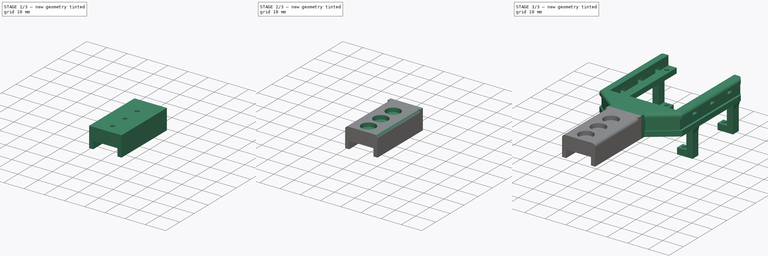
[diagram: build sequence overview — one tinted view per stage of 3, left to right]
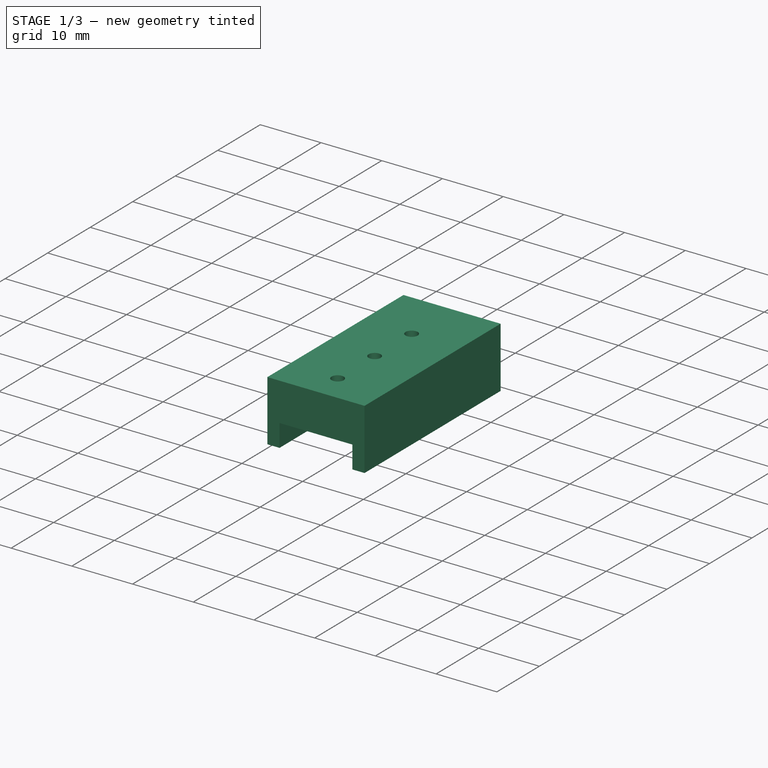
[diagram: stage 1 of 3 — iso view after this stage's code; geometry added in this stage tinted green]
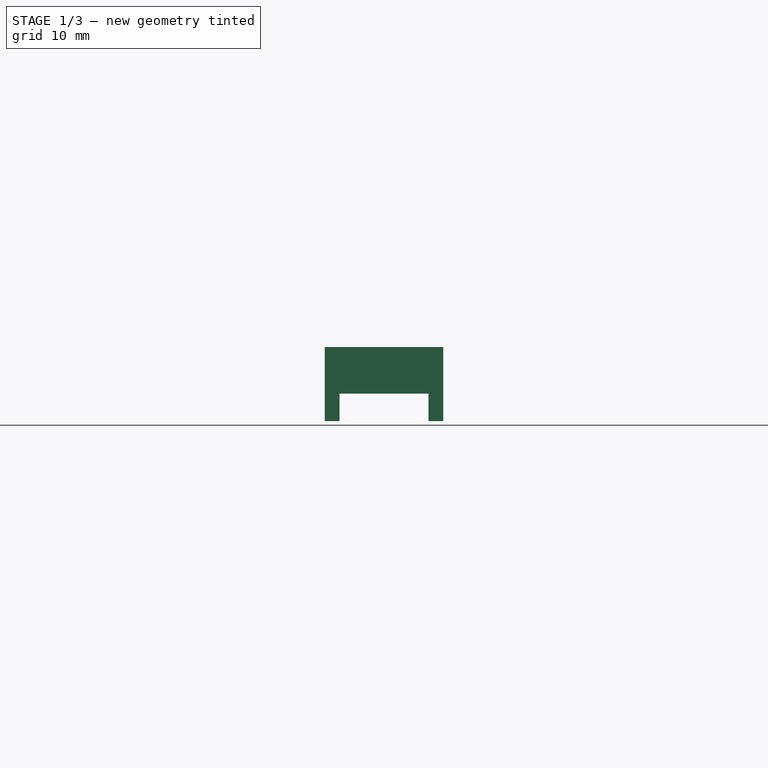
[diagram: stage 1 of 3 — front view after this stage's code; geometry added in this stage tinted green]
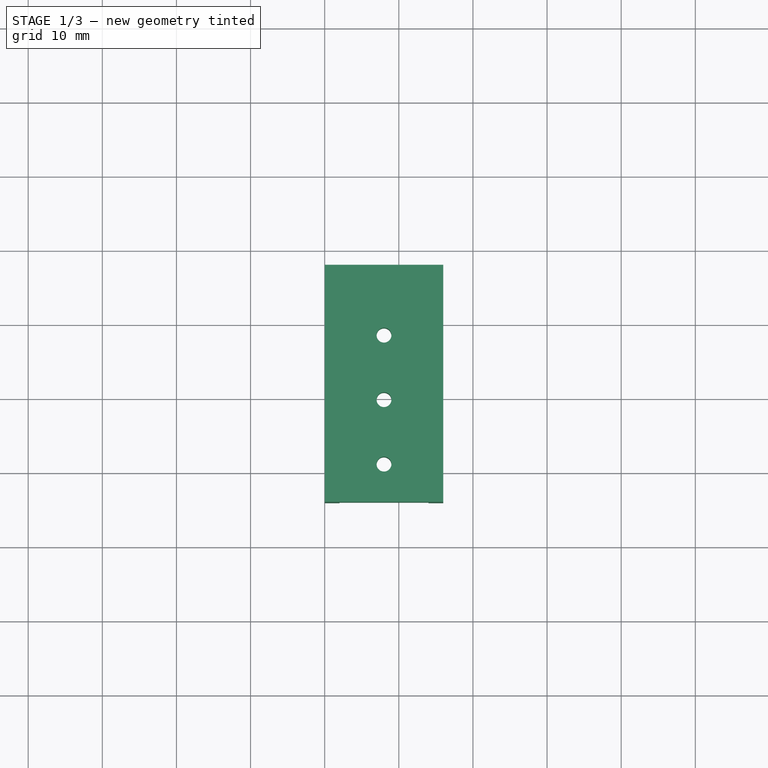
[diagram: stage 1 of 3 — top view after this stage's code; geometry added in this stage tinted green]
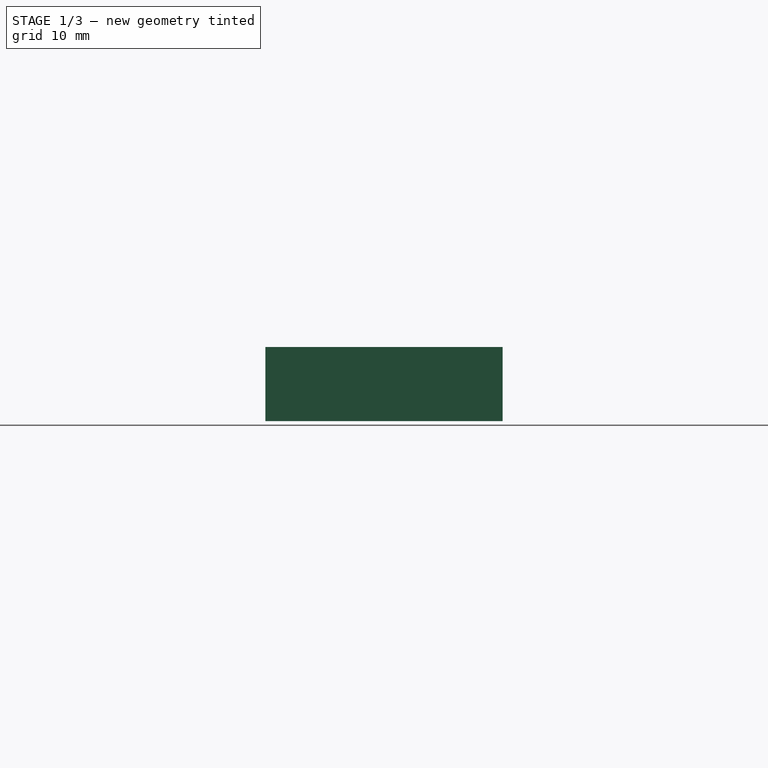
[diagram: stage 1 of 3 — right view after this stage's code; geometry added in this stage tinted green]
FCSTD DOCUMENT  (FreeCAD 0.16R6707 (Git))
Label: rq_optskin01a
License: All rights reserved
LicenseURL: http://en.wikipedia.org/wiki/All_rights_reserved
objects: Sketcher::SketchObject×6, PartDesign::Pocket×4, Part::Extrusion×2, Part::Feature×1, Part::Cut×1, Part::MultiFuse×1
note: 19 computed .brp shape members not serialized (recipe doc carries the construction recipe); baked Part::Feature solids carry a one-line shape summary decoded from their .brp

FEATURE [Part::Feature] bxgr_optskin02a_v3_1
  shape: bbox 248.5 x 97.65 x 277.8 mm, 168 faces (baked)
FEATURE [Sketcher::SketchObject] Sketch018
  Placement = pos=(0,0,10) rot=(0,0,1;0rad)
  sketch-geometry (4):
    g0: LineSegment StartX=0 StartY=-2 StartZ=0 EndX=16 EndY=-2 EndZ=0
    g1: LineSegment StartX=16 StartY=-2 StartZ=0 EndX=16 EndY=-34 EndZ=0
    g2: LineSegment StartX=16 StartY=-34 StartZ=0 EndX=0 EndY=-34 EndZ=0
    g3: LineSegment StartX=0 StartY=-34 StartZ=0 EndX=0 EndY=-2 EndZ=0
  constraints (12):
    c: Coincident(g0,g1)
    c: Coincident(g1,g2)
    c: Coincident(g2,g3)
    c: Coincident(g3,g0)
    c: Horizontal(g0)
    c: Horizontal(g2)
    c: Vertical(g1)
    c: Vertical(g3)
    c: DistanceY(g2,g0) = 32
    c: DistanceY(g0,g-1) = 2
    c: DistanceX(g0,g0) = 16
    c: PointOnObject(g0,g-2)
FEATURE [Part::Extrusion] Extrude001
  Base = -> Sketch018
  Dir = (0,0,-10)
  Solid = true
FEATURE [Sketcher::SketchObject] Sketch
  ExternalGeometry = -> [Extrude001]
  Placement = pos=(0,-34,0) rot=(1,0,0;1.5708rad)
  Support = -> Extrude001 [Face3]
  sketch-geometry (4):
    g0: LineSegment StartX=2 StartY=0 StartZ=0 EndX=14 EndY=0 EndZ=0
    g1: LineSegment StartX=14 StartY=0 StartZ=0 EndX=14 EndY=3.7 EndZ=0
    g2: LineSegment StartX=14 StartY=3.7 StartZ=0 EndX=2 EndY=3.7 EndZ=0
    g3: LineSegment StartX=2 StartY=3.7 StartZ=0 EndX=2 EndY=0 EndZ=0
  constraints (12):
    c: Coincident(g0,g1)
    c: Coincident(g1,g2)
    c: Coincident(g2,g3)
    c: Coincident(g3,g0)
    c: Horizontal(g0)
    c: Horizontal(g2)
    c: Vertical(g1)
    c: Vertical(g3)
    c: PointOnObject(g0,g-1)
    c: DistanceY(g2,g-3) = 6.3
    c: DistanceX(g2,g1) = 12
    c: DistanceX(g-1,g0) = 2
FEATURE [PartDesign::Pocket] Pocket
  Length = 32
  Sketch = -> Sketch
  Type = 0
FEATURE [Sketcher::SketchObject] Sketch019
  ExternalGeometry = -> [Pocket]
  Placement = pos=(0,0,10) rot=(0,0,1;0rad)
  Support = -> Pocket [Face2]
  sketch-geometry (3):
    g0: Circle CenterX=8 CenterY=-28.9 CenterZ=0 NormalX=0 NormalY=0 NormalZ=1 Radius=1
    g1: Circle CenterX=8 CenterY=-20.2 CenterZ=0 NormalX=0 NormalY=0 NormalZ=1 Radius=1
    g2: Circle CenterX=8 CenterY=-11.5 CenterZ=0 NormalX=0 NormalY=0 NormalZ=1 Radius=1
  constraints (9):
    c: DistanceX(g-3,g0) = 8
    c: DistanceX(g1,g0) = 0
    c: DistanceX(g2,g1) = 0
    c: DistanceY(g0,g1) = 8.7
    c: DistanceY(g1,g2) = 8.7
    c: Radius(g0) = 1
    c: Equal(g0,g1)
    c: Equal(g0,g2)
    c: DistanceY(g-3,g0) = 5.1
FEATURE [PartDesign::Pocket] Pocket001
  Length = 7
  Sketch = -> Sketch019
  Type = 0
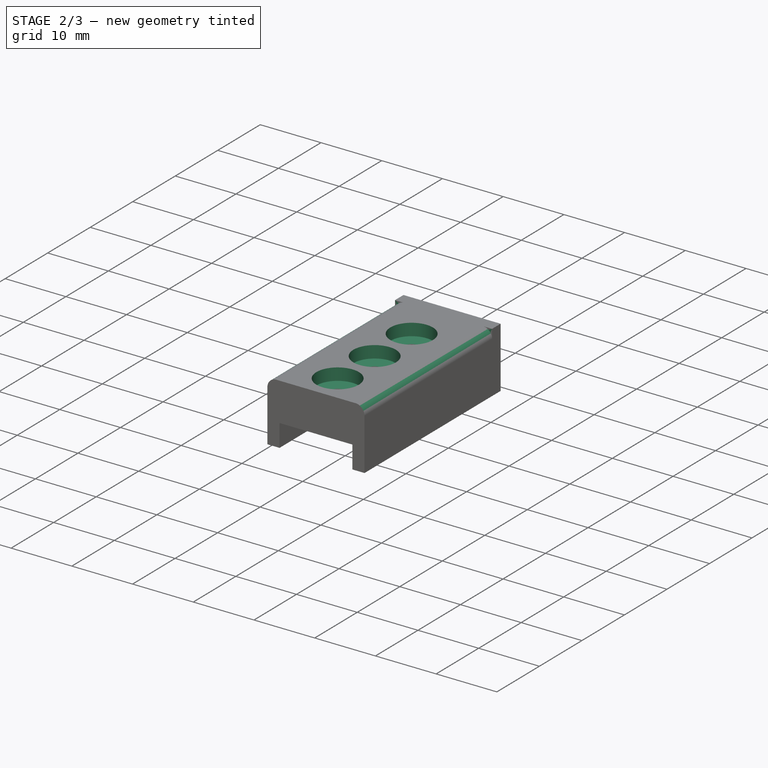
[diagram: stage 2 of 3 — iso view after this stage's code; geometry added in this stage tinted green]
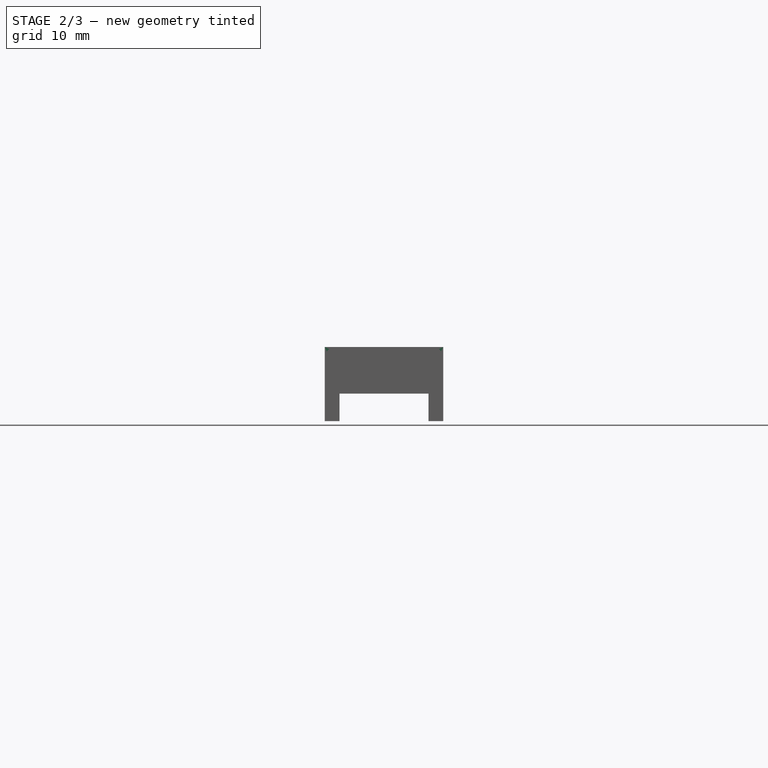
[diagram: stage 2 of 3 — front view after this stage's code; geometry added in this stage tinted green]
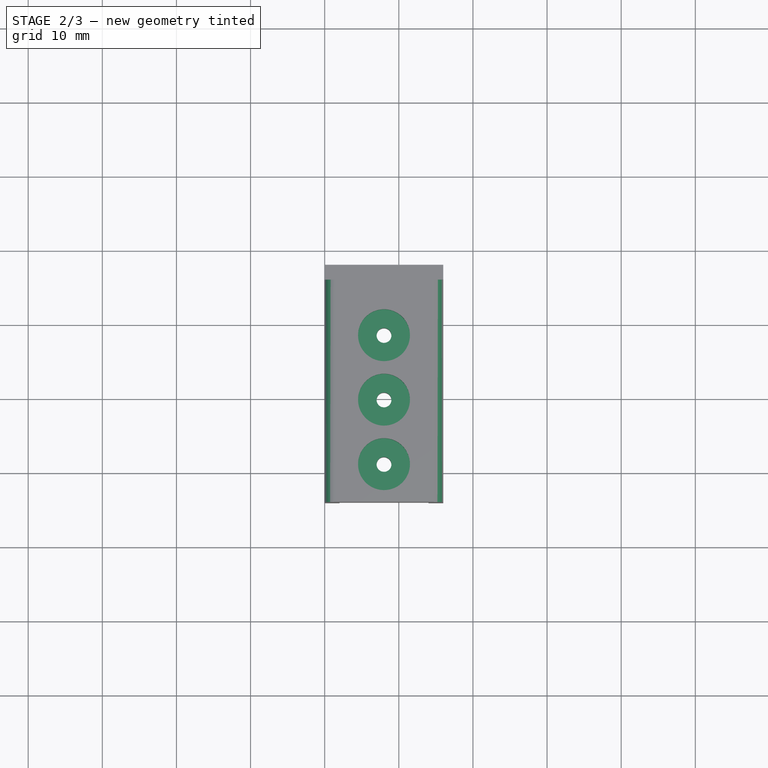
[diagram: stage 2 of 3 — top view after this stage's code; geometry added in this stage tinted green]
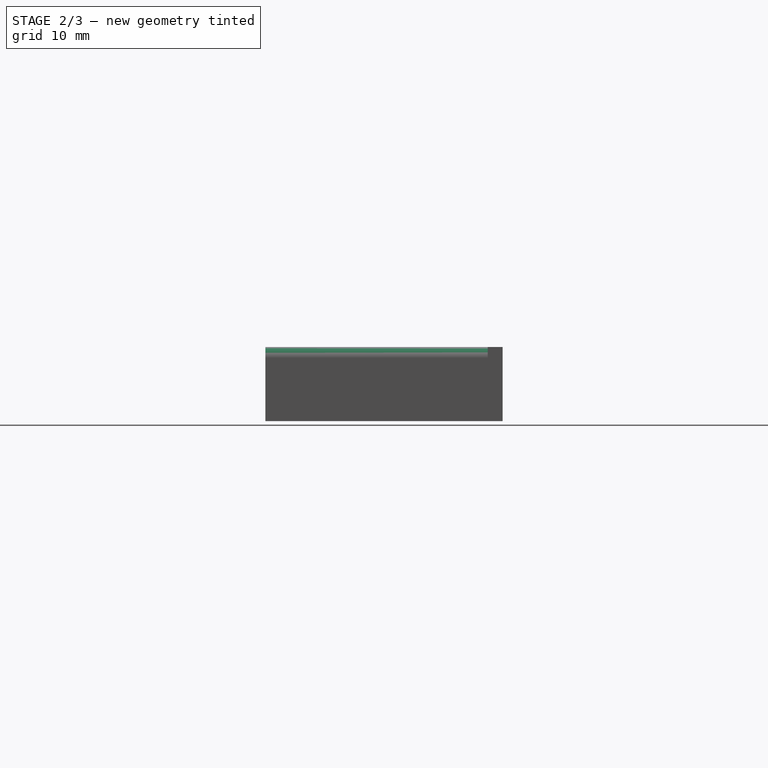
[diagram: stage 2 of 3 — right view after this stage's code; geometry added in this stage tinted green]
FEATURE [Sketcher::SketchObject] Sketch020
  ExternalGeometry = -> [Pocket]
  Placement = pos=(0,0,10) rot=(0,0,1;0rad)
  Support = -> Pocket001 [Face2]
  sketch-geometry (3):
    g0: Circle CenterX=8 CenterY=-28.9 CenterZ=0 NormalX=0 NormalY=0 NormalZ=1 Radius=3.5
    g1: Circle CenterX=8 CenterY=-20.2 CenterZ=0 NormalX=0 NormalY=0 NormalZ=1 Radius=3.5
    g2: Circle CenterX=8 CenterY=-11.5 CenterZ=0 NormalX=0 NormalY=0 NormalZ=1 Radius=3.5
  constraints (9):
    c: DistanceX(g-3,g0) = 8
    c: DistanceX(g1,g0) = 0
    c: DistanceX(g2,g1) = 0
    c: DistanceY(g0,g1) = 8.7
    c: DistanceY(g1,g2) = 8.7
    c: Radius(g0) = 3.5
    c: Equal(g0,g1)
    c: Equal(g0,g2)
    c: DistanceY(g-3,g0) = 5.1
FEATURE [PartDesign::Pocket] Pocket002
  Length = 2
  Sketch = -> Sketch020
  Type = 0
FEATURE [Sketcher::SketchObject] Sketch021
  ExternalGeometry = -> [Pocket002]
  Placement = pos=(0,-34,0) rot=(1,0,0;1.5708rad)
  Support = -> Pocket002 [Face10]
  sketch-geometry (6):
    g0: ArcOfCircle CenterX=1.5 CenterY=8.5 CenterZ=0 NormalX=0 NormalY=0 NormalZ=1 Radius=1.5 StartAngle=1.5708 EndAngle=3.14159
    g1: ArcOfCircle CenterX=14.5 CenterY=8.5 CenterZ=0 NormalX=0 NormalY=0 NormalZ=1 Radius=1.5 StartAngle=0 EndAngle=1.5708
    g2: LineSegment StartX=0 StartY=8.5 StartZ=0 EndX=0 EndY=10 EndZ=0
    g3: LineSegment StartX=0 StartY=10 StartZ=0 EndX=1.5 EndY=10 EndZ=0
    g4: LineSegment StartX=14.5 StartY=10 StartZ=0 EndX=16 EndY=10 EndZ=0
    g5: LineSegment StartX=16 StartY=10 StartZ=0 EndX=16 EndY=8.5 EndZ=0
  constraints (21):
    c: PointOnObject(g0,g-3)
    c: PointOnObject(g1,g-3)
    c: Radius(g0) = 1.5
    c: Equal(g0,g1)
    c: DistanceX(g-3,g0) = 1.5
    c: PointOnObject(g0,g-2)
    c: DistanceY(g0,g-3) = 1.5
    c: DistanceX(g1,g-3) = 1.5
    c: DistanceY(g1,g-3) = 1.5
    c: PointOnObject(g1,g-4)
    c: Coincident(g0,g2)
    c: Coincident(g2,g3)
    c: Coincident(g3,g0)
    c: Horizontal(g3)
    c: Tangent(g3,g0)
    c: Coincident(g2,g-3)
    c: Coincident(g1,g4)
    c: Coincident(g4,g5)
    c: Coincident(g5,g1)
    c: Vertical(g5)
    c: Coincident(g4,g-4)
FEATURE [PartDesign::Pocket] Pocket003
  Length = 30
  Sketch = -> Sketch021
  Type = 0
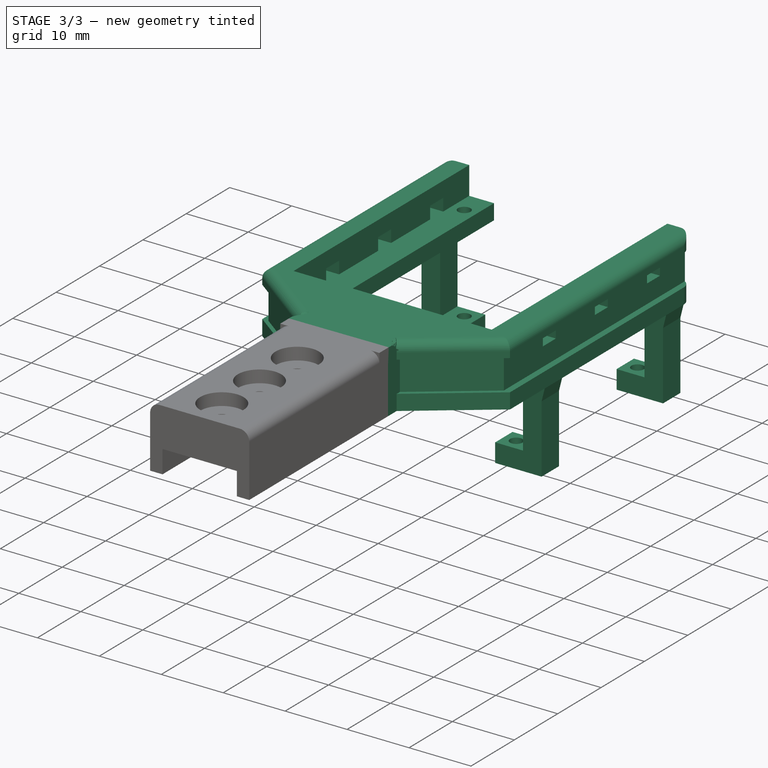
[diagram: stage 3 of 3 — iso view after this stage's code; geometry added in this stage tinted green]
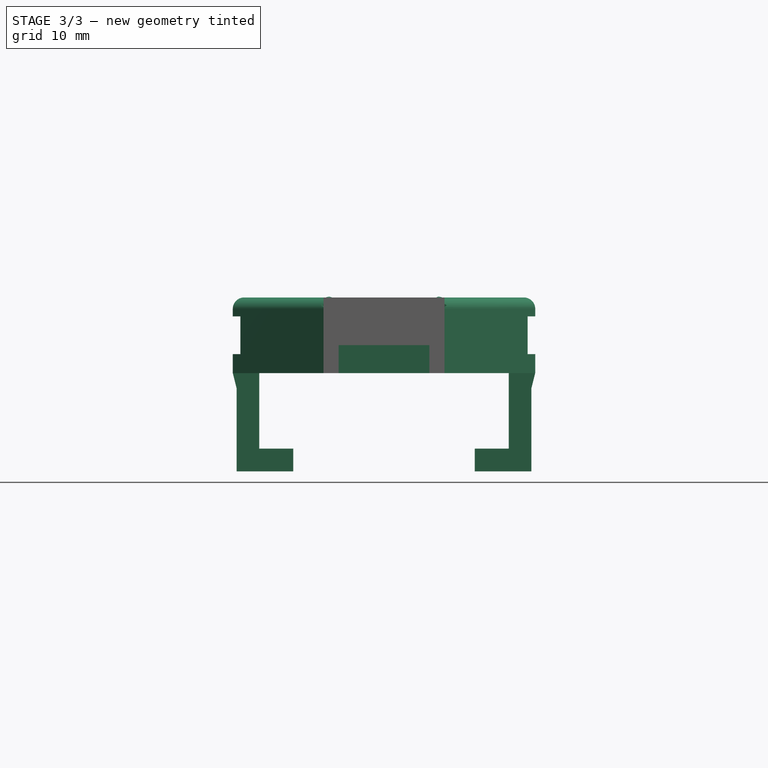
[diagram: stage 3 of 3 — front view after this stage's code; geometry added in this stage tinted green]
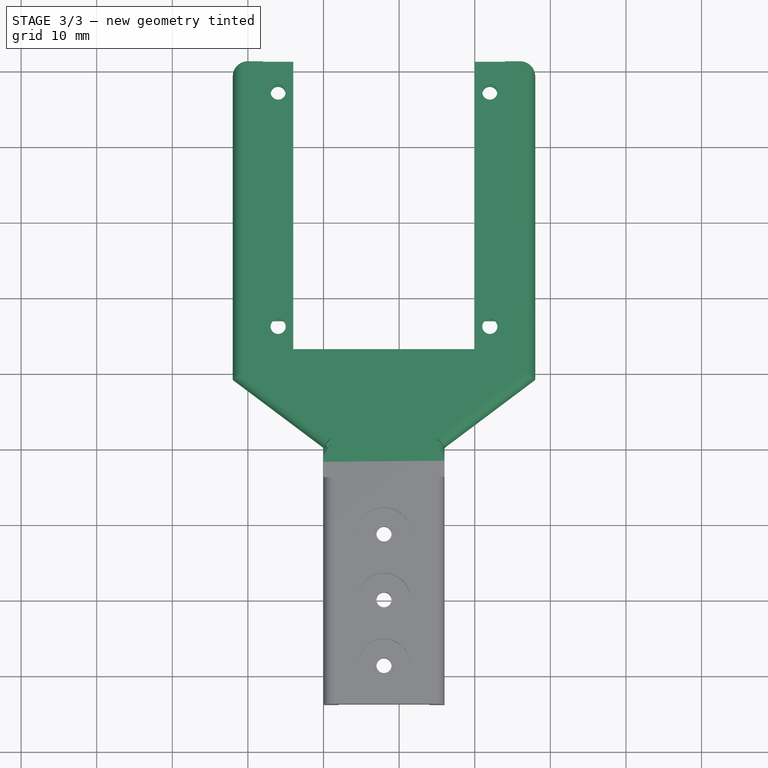
[diagram: stage 3 of 3 — top view after this stage's code; geometry added in this stage tinted green]
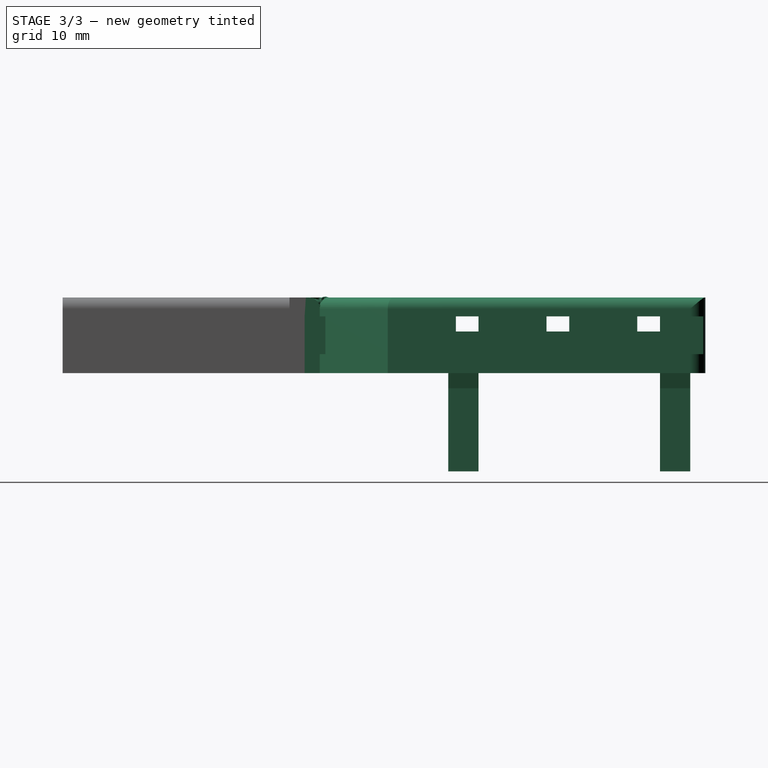
[diagram: stage 3 of 3 — right view after this stage's code; geometry added in this stage tinted green]
FEATURE [Sketcher::SketchObject] Sketch017
  Placement = pos=(0,0,10) rot=(0,0,1;0rad)
  sketch-geometry (4):
    g0: LineSegment StartX=0 StartY=-2 StartZ=0 EndX=16 EndY=-2 EndZ=0
    g1: LineSegment StartX=16 StartY=-2 StartZ=0 EndX=16 EndY=-34 EndZ=0
    g2: LineSegment StartX=16 StartY=-34 StartZ=0 EndX=0 EndY=-34 EndZ=0
    g3: LineSegment StartX=0 StartY=-34 StartZ=0 EndX=0 EndY=-2 EndZ=0
  constraints (12):
    c: Coincident(g0,g1)
    c: Coincident(g1,g2)
    c: Coincident(g2,g3)
    c: Coincident(g3,g0)
    c: Horizontal(g0)
    c: Horizontal(g2)
    c: Vertical(g1)
    c: Vertical(g3)
    c: DistanceY(g2,g0) = 32
    c: DistanceY(g0,g-1) = 2
    c: DistanceX(g0,g0) = 16
    c: PointOnObject(g0,g-2)
FEATURE [Part::Extrusion] Extrude
  Base = -> Sketch017
  Dir = (0,0,-10)
  Solid = true
FEATURE [Part::Cut] Cut
  Base = -> bxgr_optskin02a_v3_1
  Tool = -> Extrude
FEATURE [Part::MultiFuse] Fusion
  Shapes = -> [Cut,Pocket003]
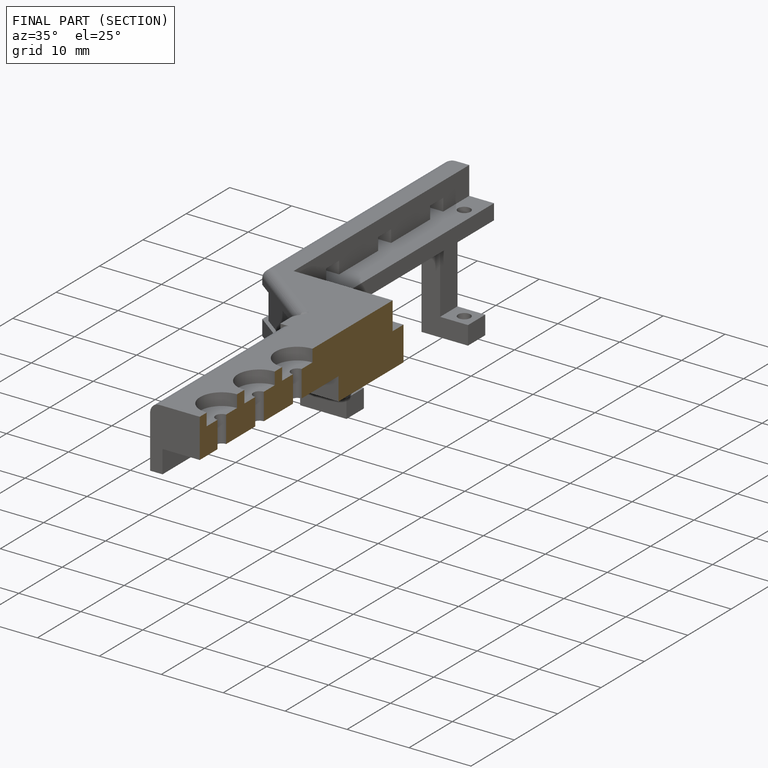
[diagram: finished part — half-section view (interior)]
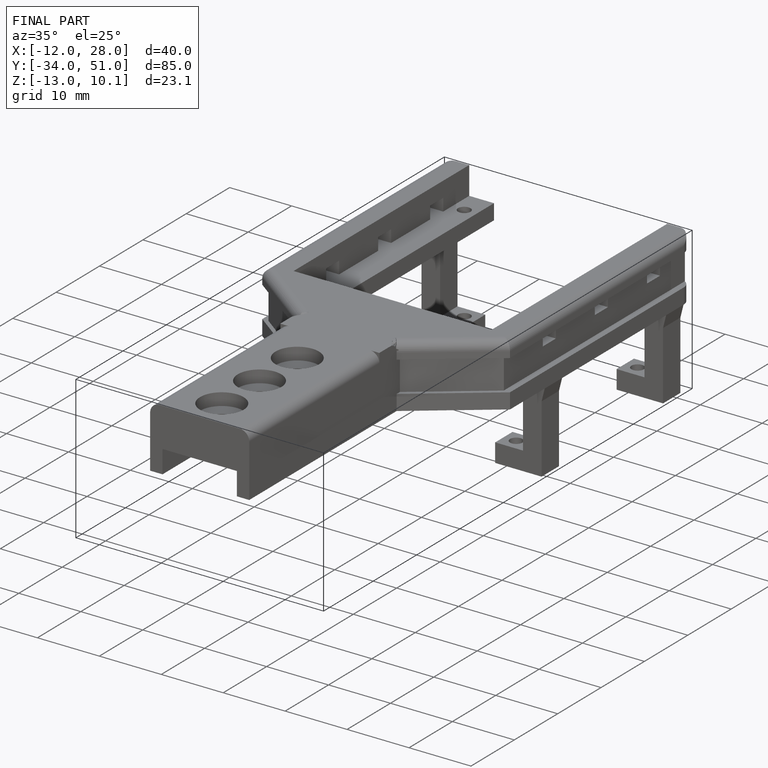
[diagram: finished part — iso view with bounding-box wireframe]
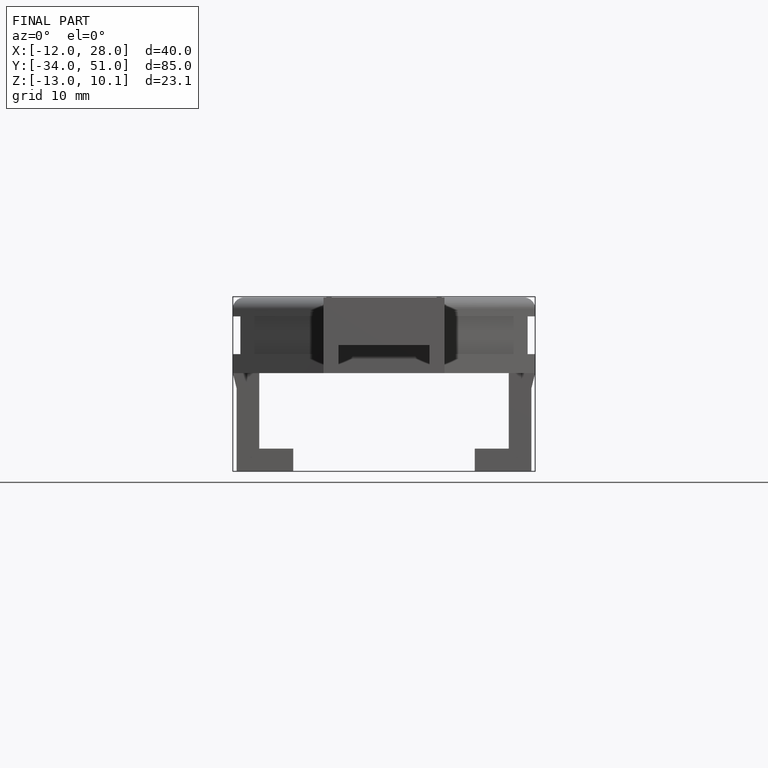
[diagram: finished part — front view with bounding-box wireframe]
